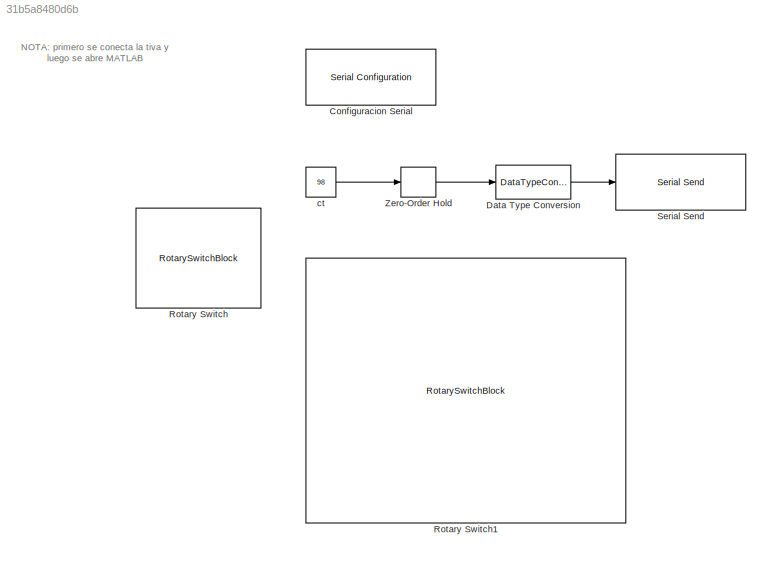
MODEL slx_31b5a8480d6b
KIND model
CONFIG AbsTol = auto
CONFIG EnableMultiTasking = off
CONFIG FixedStep = auto
CONFIG MaxStep = auto
CONFIG MinStep = auto
CONFIG RelTol = 1e-3
CONFIG SampleTimeConstraint = Unconstrained
CONFIG Solver = VariableStepAuto
CONFIG SolverName = VariableStepAuto
CONFIG StartTime = 0.0
CONFIG StopTime = inf
BLOCK [Reference] Configuracion Serial  REF=instrumentlib/Serial Configuration
  Ports = []
  Priority = -200000
  SourceBlock = instrumentlib/Serial Configuration
  SourceProductBaseCode = IC
  SourceType = Serial Configuration
BLOCK [DataTypeConversion] Data Type Conversion 
  OutDataTypeStr = uint8
  RndMeth = Floor
  SaturateOnIntegerOverflow = off
BLOCK [RotarySwitchBlock] Rotary Switch
BLOCK [RotarySwitchBlock] Rotary Switch1
BLOCK [Reference] Serial Send  REF=instrumentlib/Serial Send
  Ports = [1]
  SourceBlock = instrumentlib/Serial Send
  SourceProductBaseCode = IC
  SourceType = Serial Send
BLOCK [ZeroOrderHold] Zero-Order Hold
  SampleTime = 0.5
BLOCK [Constant] ct
  Value = 98
ANNOTATION (root): NOTA: primero se conecta la tiva y luego se abre MATLAB
LINE Data Type Conversion :1 -> Serial Send:1
LINE Zero-Order Hold:1 -> Data Type Conversion :1
LINE ct:1 -> Zero-Order Hold:1
